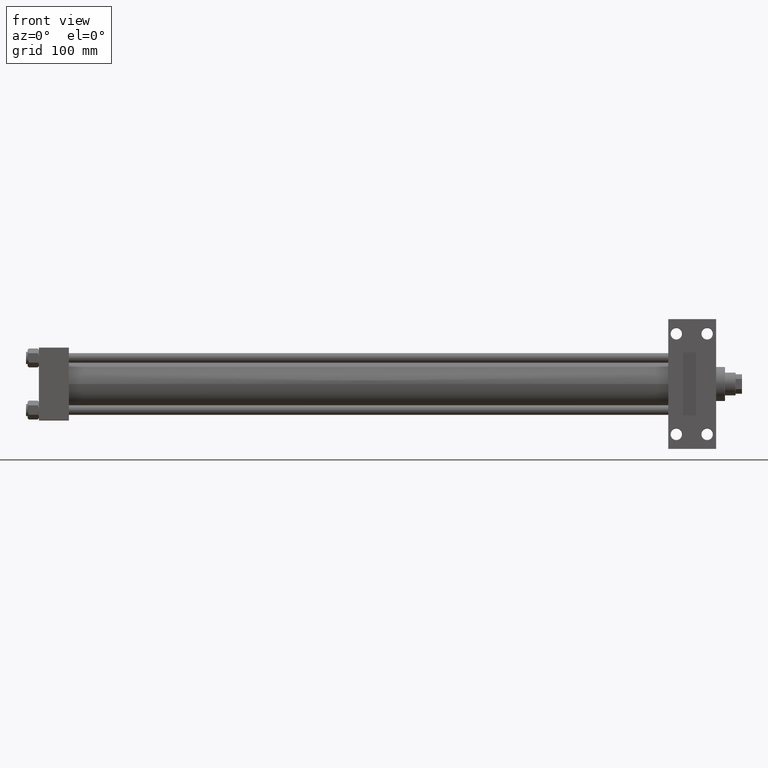
[diagram: clean part render]
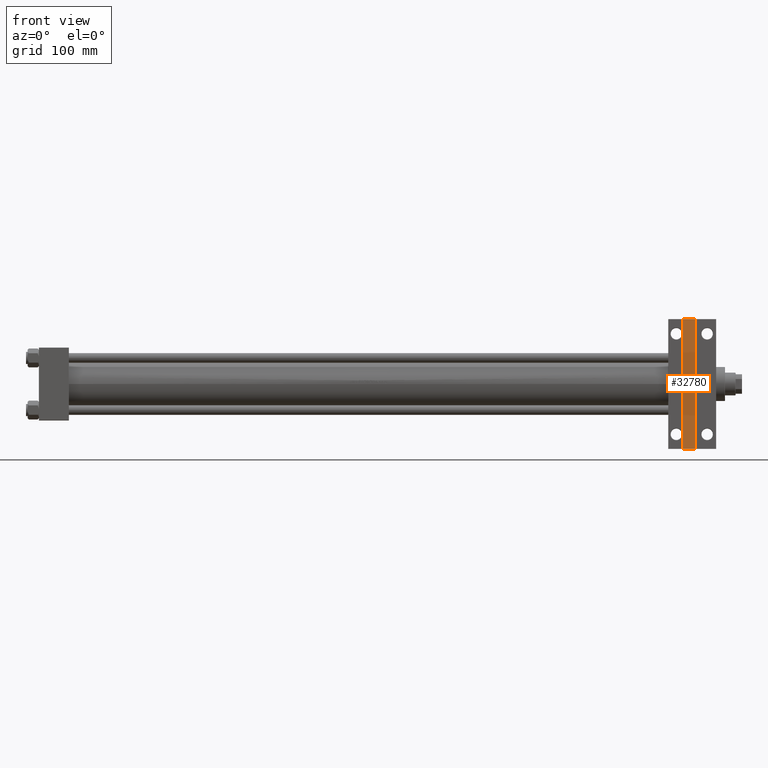
[diagram: same view with one face highlighted and labeled with its STEP entity id]
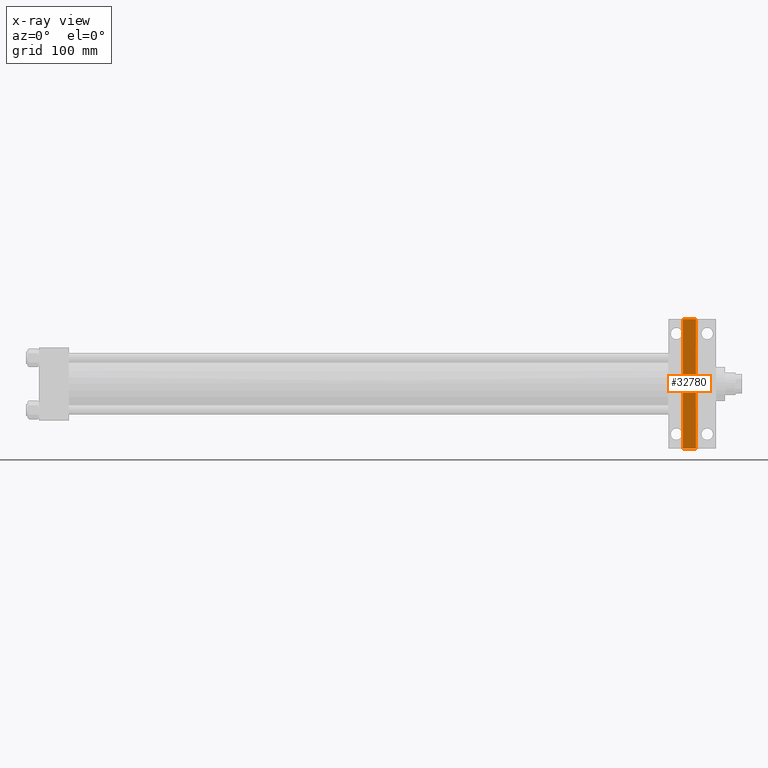
[diagram: x-ray of the same camera — body ghosted, the highlighted face saturated]
A machine part, front view. The second image highlights one B-rep face of the part: STEP entity #32780.
The next image is the same camera in x-ray: the body ghosted, the highlighted face saturated — about 0% of this face is hidden behind the body in this view.
In plain terms, the highlighted planar face has unit normal (0, -1, 0).
Its self-contained STEP definition (entity closure, byte-faithful):
#564 = ORIENTED_EDGE ( 'NONE', *, *, #32881, .T. ) ;
#6518 = PLANE ( 'NONE',  #30959 ) ;
#7211 = DIRECTION ( 'NONE',  ( -1.000000000000000000, 0.000000000000000000, -0.000000000000000000 ) ) ;
#7655 = CARTESIAN_POINT ( 'NONE',  ( 793.9999999999998863, 79.99999999999990052, -39.00000000000000000 ) ) ;
#12288 = CARTESIAN_POINT ( 'NONE',  ( 809.9999999999998863, -80.00000000000008527, -39.00000000000000000 ) ) ;
#13019 = CARTESIAN_POINT ( 'NONE',  ( 809.9999999999998863, -79.99999999999991473, -39.00000000000000000 ) ) ;
#14455 = DIRECTION ( 'NONE',  ( 0.000000000000000000, 0.000000000000000000, -1.000000000000000000 ) ) ;
#15164 = DIRECTION ( 'NONE',  ( -1.000000000000000000, -0.000000000000000000, -0.000000000000000000 ) ) ;
#15401 = LINE ( 'NONE', #29610, #36322 ) ;
#16647 = DIRECTION ( 'NONE',  ( -0.000000000000000000, -1.000000000000000000, -0.000000000000000000 ) ) ;
#21607 = EDGE_LOOP ( 'NONE', ( #28894, #564, #44160, #44930 ) ) ;
#21688 = VECTOR ( 'NONE', #22730, 1000.000000000000000 ) ;
#22730 = DIRECTION ( 'NONE',  ( 0.000000000000000000, 1.000000000000000000, 0.000000000000000000 ) ) ;
#23206 = CARTESIAN_POINT ( 'NONE',  ( 793.9999999999998863, -79.99999999999991473, -39.00000000000000000 ) ) ;
#26509 = LINE ( 'NONE', #13019, #39398 ) ;
#28894 = ORIENTED_EDGE ( 'NONE', *, *, #31699, .T. ) ;
#29162 = CARTESIAN_POINT ( 'NONE',  ( 793.9999999999998863, -79.99999999999991473, -39.00000000000000000 ) ) ;
#29492 = VECTOR ( 'NONE', #29826, 1000.000000000000000 ) ;
#29610 = CARTESIAN_POINT ( 'NONE',  ( 793.9999999999998863, -79.99999999999991473, -39.00000000000000000 ) ) ;
#29826 = DIRECTION ( 'NONE',  ( 1.000000000000000000, 0.000000000000000000, 0.000000000000000000 ) ) ;
#30458 = LINE ( 'NONE', #23206, #21688 ) ;
#30959 = AXIS2_PLACEMENT_3D ( 'NONE', #40242, #14455, #7211 ) ;
#31699 = EDGE_CURVE ( 'NONE', #33872, #33789, #26509, .T. ) ;
#32496 = CARTESIAN_POINT ( 'NONE',  ( 809.9999999999998863, 79.99999999999990052, -39.00000000000000000 ) ) ;
#32780 = ADVANCED_FACE ( 'NONE', ( #36617 ), #6518, .T. ) ;
#32881 = EDGE_CURVE ( 'NONE', #33789, #38195, #15401, .T. ) ;
#33296 = VERTEX_POINT ( 'NONE', #36470 ) ;
#33789 = VERTEX_POINT ( 'NONE', #12288 ) ;
#33872 = VERTEX_POINT ( 'NONE', #32496 ) ;
#35991 = EDGE_CURVE ( 'NONE', #38195, #33296, #30458, .T. ) ;
#36322 = VECTOR ( 'NONE', #15164, 1000.000000000000000 ) ;
#36470 = CARTESIAN_POINT ( 'NONE',  ( 793.9999999999998863, 79.99999999999990052, -39.00000000000000000 ) ) ;
#36617 = FACE_OUTER_BOUND ( 'NONE', #21607, .T. ) ;
#38195 = VERTEX_POINT ( 'NONE', #29162 ) ;
#39398 = VECTOR ( 'NONE', #16647, 1000.000000000000000 ) ;
#39492 = EDGE_CURVE ( 'NONE', #33296, #33872, #44309, .T. ) ;
#40242 = CARTESIAN_POINT ( 'NONE',  ( 0.000000000000000000, 0.000000000000000000, -39.00000000000000000 ) ) ;
#44160 = ORIENTED_EDGE ( 'NONE', *, *, #35991, .T. ) ;
#44309 = LINE ( 'NONE', #7655, #29492 ) ;
#44930 = ORIENTED_EDGE ( 'NONE', *, *, #39492, .T. ) ;